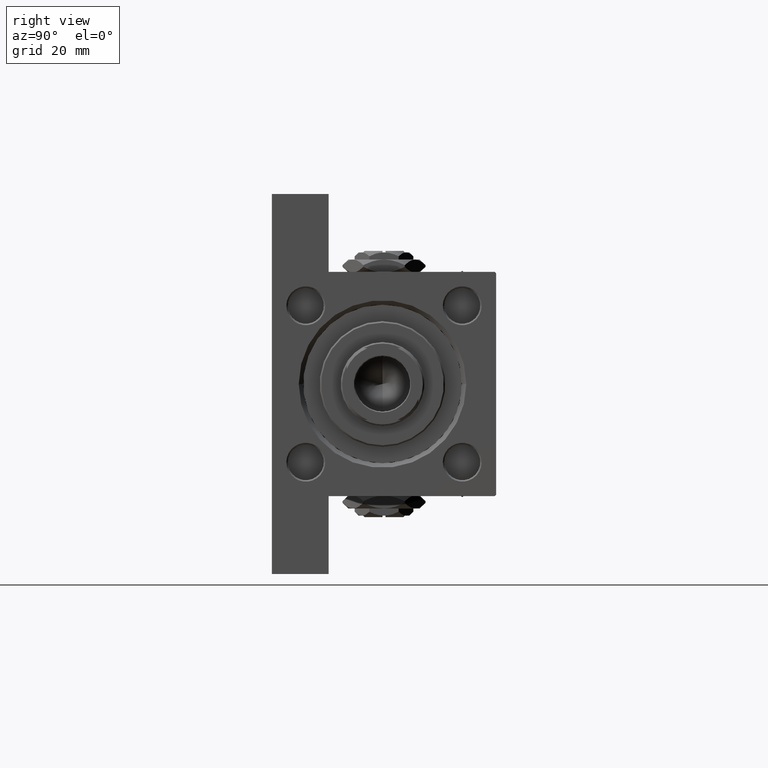
[diagram: clean part render]
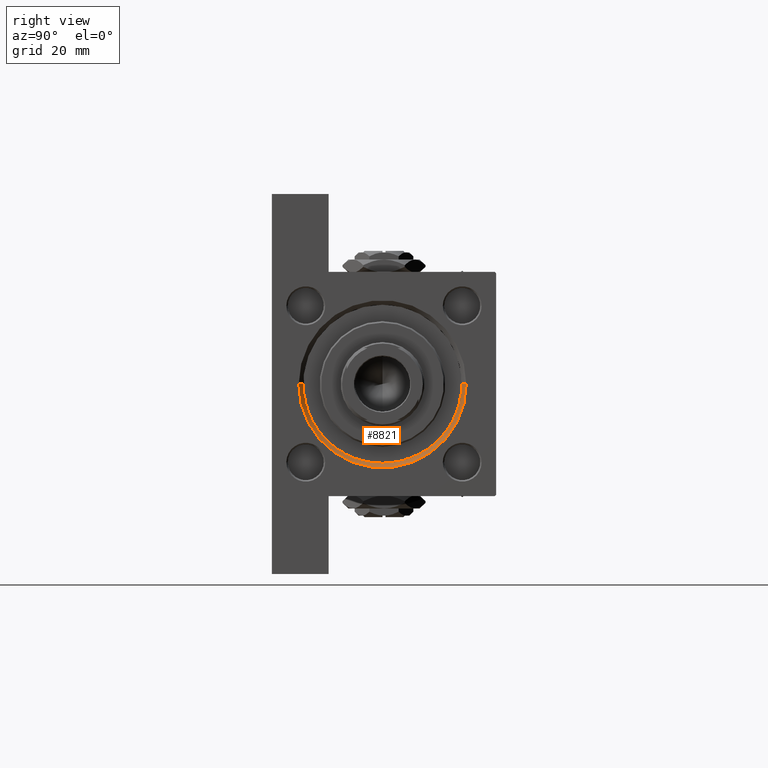
[diagram: same view with one face highlighted and labeled with its STEP entity id]
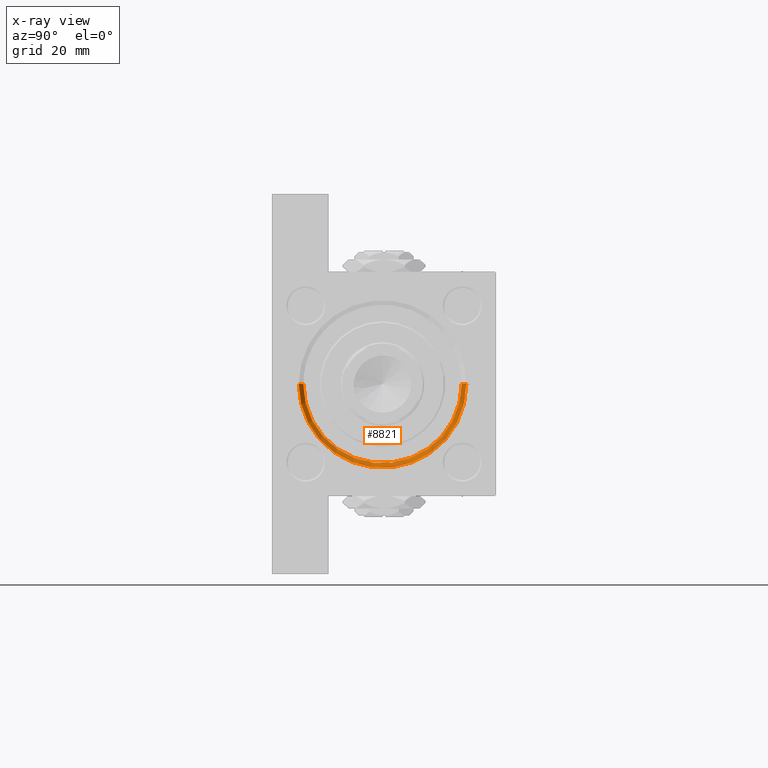
[diagram: x-ray of the same camera — body ghosted, the highlighted face saturated]
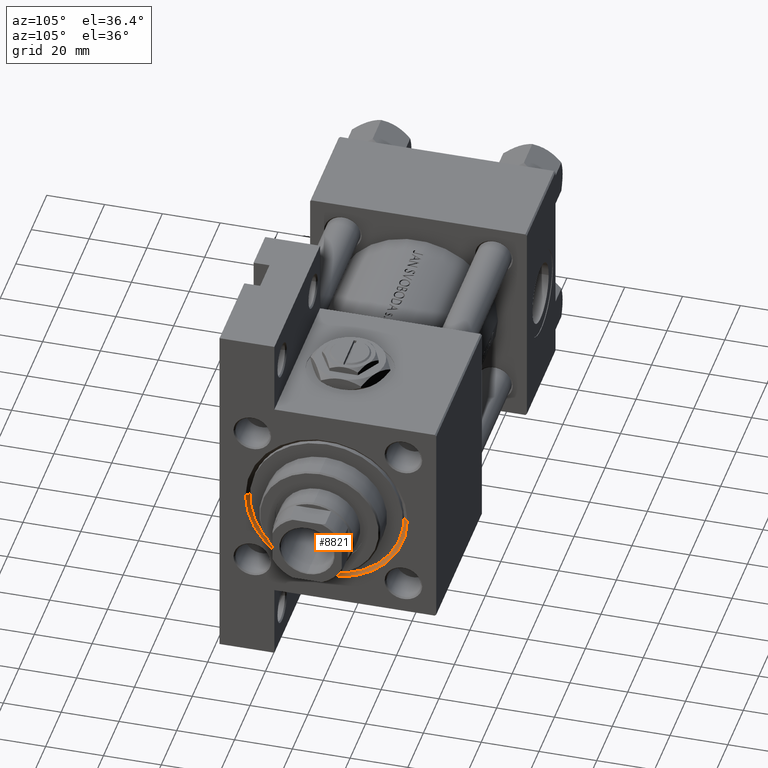
[diagram: same view with one face highlighted and labeled with its STEP entity id]
A machine part, right view. The second image highlights one B-rep face of the part: STEP entity #8821.
The next image is the same camera in x-ray: the body ghosted, the highlighted face saturated — about 0% of this face is hidden behind the body in this view.
A second angle (auxiliary view) of the same face is appended — the face is thin or edge-on in the first view.
In plain terms, the highlighted conical surface has half-angle 45 deg.
Its self-contained STEP definition (entity closure, byte-faithful):
#563 = DIRECTION ( 'NONE',  ( -1.000000000000000000, -0.000000000000000000, 0.000000000000000000 ) ) ;
#2113 = VERTEX_POINT ( 'NONE', #13020 ) ;
#2694 = DIRECTION ( 'NONE',  ( 0.000000000000000000, 0.000000000000000000, 1.000000000000000000 ) ) ;
#3183 = ORIENTED_EDGE ( 'NONE', *, *, #13042, .T. ) ;
#3342 = VERTEX_POINT ( 'NONE', #44398 ) ;
#3956 = VECTOR ( 'NONE', #17554, 1000.000000000000114 ) ;
#4072 = ORIENTED_EDGE ( 'NONE', *, *, #33910, .F. ) ;
#5973 = AXIS2_PLACEMENT_3D ( 'NONE', #44452, #25410, #2694 ) ;
#8821 = ADVANCED_FACE ( 'NONE', ( #39395 ), #38102, .F. ) ;
#9599 = LINE ( 'NONE', #43592, #3956 ) ;
#10515 = DIRECTION ( 'NONE',  ( 0.7071067811865361374, 8.659560562355073374E-17, 0.7071067811865588970 ) ) ;
#11376 = EDGE_CURVE ( 'NONE', #43958, #2113, #42213, .T. ) ;
#13020 = CARTESIAN_POINT ( 'NONE',  ( 154.0000000000000000, 0.000000000000000000, -28.49999999999999645 ) ) ;
#13042 = EDGE_CURVE ( 'NONE', #17406, #2113, #9599, .T. ) ;
#15053 = AXIS2_PLACEMENT_3D ( 'NONE', #34815, #563, #15808 ) ;
#15658 = CARTESIAN_POINT ( 'NONE',  ( 152.5000000000000568, 0.000000000000000000, -27.00000000000000355 ) ) ;
#15808 = DIRECTION ( 'NONE',  ( 0.000000000000000000, 0.000000000000000000, 1.000000000000000000 ) ) ;
#16962 = ORIENTED_EDGE ( 'NONE', *, *, #11376, .F. ) ;
#16965 = CARTESIAN_POINT ( 'NONE',  ( 154.0000000000000000, 3.429011037612588881E-15, 27.49999999999999645 ) ) ;
#17406 = VERTEX_POINT ( 'NONE', #15658 ) ;
#17554 = DIRECTION ( 'NONE',  ( 0.7071067811865361374, 0.000000000000000000, -0.7071067811865588970 ) ) ;
#19811 = EDGE_LOOP ( 'NONE', ( #46238, #4072, #3183, #16962 ) ) ;
#21976 = LINE ( 'NONE', #37243, #24294 ) ;
#24114 = DIRECTION ( 'NONE',  ( 0.000000000000000000, 0.000000000000000000, -1.000000000000000000 ) ) ;
#24294 = VECTOR ( 'NONE', #10515, 1000.000000000000114 ) ;
#25410 = DIRECTION ( 'NONE',  ( 1.000000000000000000, 0.000000000000000000, 0.000000000000000000 ) ) ;
#27494 = CIRCLE ( 'NONE', #5973, 26.50000000000000355 ) ;
#28373 = DIRECTION ( 'NONE',  ( 1.000000000000000000, 0.000000000000000000, 0.000000000000000000 ) ) ;
#31896 = CARTESIAN_POINT ( 'NONE',  ( 152.5000000000000568, 0.000000000000000000, -0.5000000000000004441 ) ) ;
#33910 = EDGE_CURVE ( 'NONE', #17406, #3342, #27494, .T. ) ;
#34815 = CARTESIAN_POINT ( 'NONE',  ( 154.0000000000000000, 0.000000000000000000, -0.5000000000000004441 ) ) ;
#36686 = EDGE_CURVE ( 'NONE', #3342, #43958, #21976, .T. ) ;
#37243 = CARTESIAN_POINT ( 'NONE',  ( 152.5000000000000568, 3.245314017740486554E-15, 26.00000000000000355 ) ) ;
#38102 = CONICAL_SURFACE ( 'NONE', #42103, 26.50000000000000355, 0.7853981633974644883 ) ;
#39395 = FACE_OUTER_BOUND ( 'NONE', #19811, .T. ) ;
#42103 = AXIS2_PLACEMENT_3D ( 'NONE', #31896, #28373, #24114 ) ;
#42213 = CIRCLE ( 'NONE', #15053, 27.99999999999999645 ) ;
#43592 = CARTESIAN_POINT ( 'NONE',  ( 152.5000000000000568, 0.000000000000000000, -27.00000000000000355 ) ) ;
#43958 = VERTEX_POINT ( 'NONE', #16965 ) ;
#44398 = CARTESIAN_POINT ( 'NONE',  ( 152.5000000000000568, 3.245314017740486554E-15, 26.00000000000000355 ) ) ;
#44452 = CARTESIAN_POINT ( 'NONE',  ( 152.5000000000000568, 0.000000000000000000, -0.5000000000000004441 ) ) ;
#46238 = ORIENTED_EDGE ( 'NONE', *, *, #36686, .F. ) ;